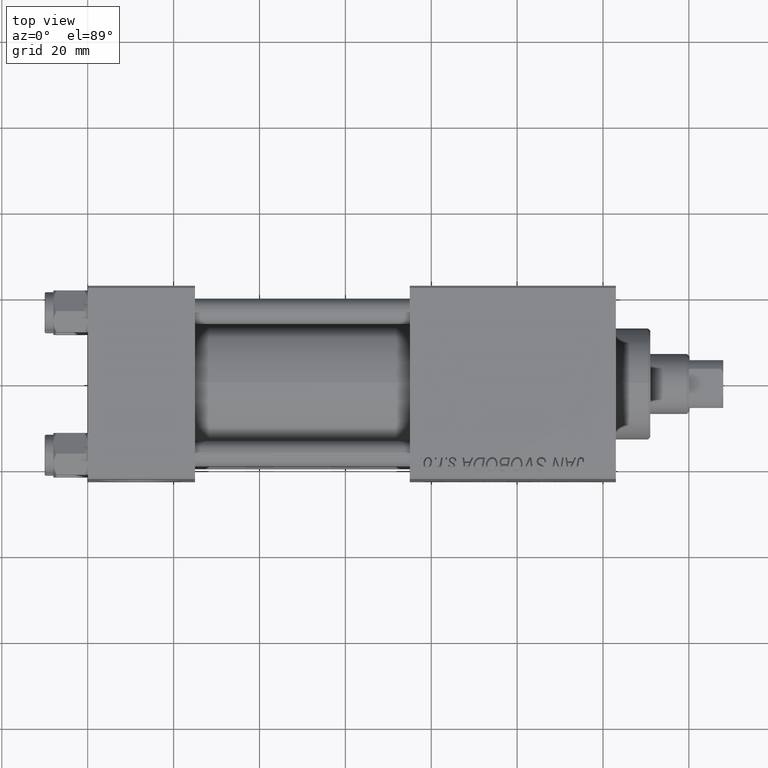
[diagram: clean part render]
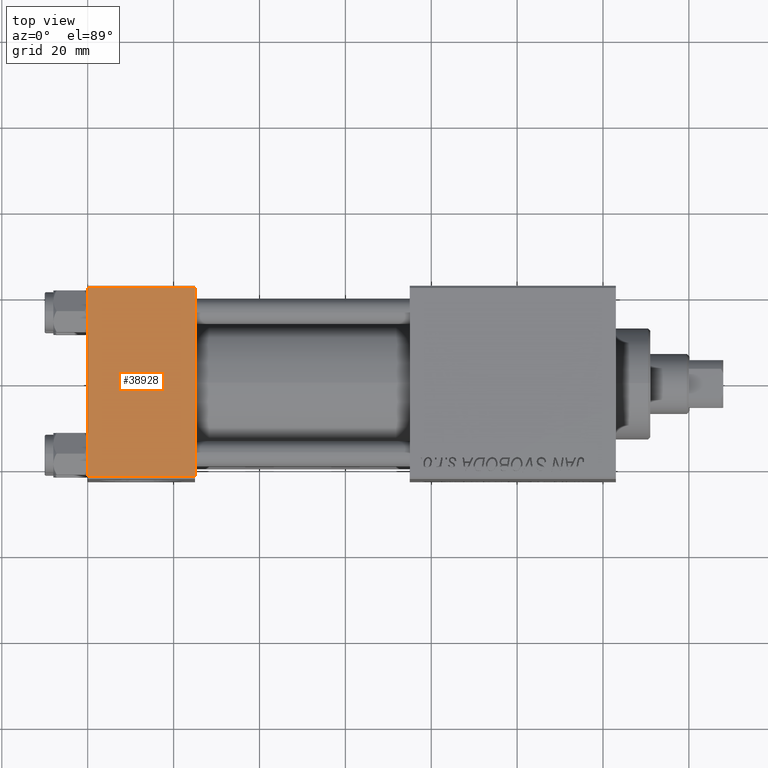
[diagram: same view with one face highlighted and labeled with its STEP entity id]
A machine part, top view. The second image highlights one B-rep face of the part: STEP entity #38928.
In plain terms, the highlighted planar face has unit normal (0, 0, -1).
Its self-contained STEP definition (entity closure, byte-faithful):
#1564 = ORIENTED_EDGE ( 'NONE', *, *, #29200, .T. ) ;
#2814 = VERTEX_POINT ( 'NONE', #21780 ) ;
#3257 = VERTEX_POINT ( 'NONE', #19662 ) ;
#3396 = DIRECTION ( 'NONE',  ( 0.000000000000000000, -1.000000000000000000, -7.709882115452476934E-17 ) ) ;
#5372 = EDGE_CURVE ( 'NONE', #3257, #2814, #7207, .T. ) ;
#7207 = LINE ( 'NONE', #49726, #37924 ) ;
#7463 = CARTESIAN_POINT ( 'NONE',  ( 25.00000000000000000, 21.99999999999999289, 22.50000000000000355 ) ) ;
#8462 = DIRECTION ( 'NONE',  ( 0.000000000000000000, 1.000000000000000000, 7.709882115452476934E-17 ) ) ;
#8713 = PLANE ( 'NONE',  #46441 ) ;
#12907 = DIRECTION ( 'NONE',  ( -1.000000000000000000, 0.000000000000000000, 0.000000000000000000 ) ) ;
#12911 = EDGE_LOOP ( 'NONE', ( #38725, #1564, #25363, #31100 ) ) ;
#15317 = DIRECTION ( 'NONE',  ( 1.000000000000000000, 0.000000000000000000, 0.000000000000000000 ) ) ;
#17470 = LINE ( 'NONE', #32986, #42512 ) ;
#18472 = VERTEX_POINT ( 'NONE', #46572 ) ;
#19662 = CARTESIAN_POINT ( 'NONE',  ( 0.000000000000000000, 21.99999999999999289, 22.50000000000000355 ) ) ;
#21780 = CARTESIAN_POINT ( 'NONE',  ( 0.000000000000000000, -21.99999999999997868, 22.50000000000000000 ) ) ;
#22951 = CARTESIAN_POINT ( 'NONE',  ( 25.00000000000000000, -21.99999999999999289, 22.50000000000000000 ) ) ;
#23508 = CARTESIAN_POINT ( 'NONE',  ( 25.00000000000000000, 22.50000000000000000, 22.50000000000000355 ) ) ;
#24252 = DIRECTION ( 'NONE',  ( 0.000000000000000000, 7.709882115452476934E-17, -1.000000000000000000 ) ) ;
#25363 = ORIENTED_EDGE ( 'NONE', *, *, #38791, .F. ) ;
#28922 = VERTEX_POINT ( 'NONE', #7463 ) ;
#29200 = EDGE_CURVE ( 'NONE', #2814, #18472, #46840, .T. ) ;
#31100 = ORIENTED_EDGE ( 'NONE', *, *, #46556, .T. ) ;
#32986 = CARTESIAN_POINT ( 'NONE',  ( 0.000000000000000000, 21.99999999999999289, 22.50000000000000355 ) ) ;
#33087 = VECTOR ( 'NONE', #15317, 1000.000000000000000 ) ;
#33690 = LINE ( 'NONE', #34706, #43168 ) ;
#34706 = CARTESIAN_POINT ( 'NONE',  ( 25.00000000000000000, 22.50000000000000000, 22.50000000000000355 ) ) ;
#37924 = VECTOR ( 'NONE', #3396, 1000.000000000000000 ) ;
#38725 = ORIENTED_EDGE ( 'NONE', *, *, #5372, .T. ) ;
#38791 = EDGE_CURVE ( 'NONE', #28922, #18472, #33690, .T. ) ;
#38928 = ADVANCED_FACE ( 'NONE', ( #46662 ), #8713, .F. ) ;
#42512 = VECTOR ( 'NONE', #12907, 1000.000000000000000 ) ;
#43168 = VECTOR ( 'NONE', #49213, 1000.000000000000000 ) ;
#46441 = AXIS2_PLACEMENT_3D ( 'NONE', #23508, #24252, #8462 ) ;
#46556 = EDGE_CURVE ( 'NONE', #28922, #3257, #17470, .T. ) ;
#46572 = CARTESIAN_POINT ( 'NONE',  ( 25.00000000000000000, -21.99999999999997868, 22.50000000000000000 ) ) ;
#46662 = FACE_OUTER_BOUND ( 'NONE', #12911, .T. ) ;
#46840 = LINE ( 'NONE', #22951, #33087 ) ;
#49213 = DIRECTION ( 'NONE',  ( 0.000000000000000000, -1.000000000000000000, -7.709882115452476934E-17 ) ) ;
#49726 = CARTESIAN_POINT ( 'NONE',  ( 0.000000000000000000, 22.50000000000000000, 22.50000000000000355 ) ) ;